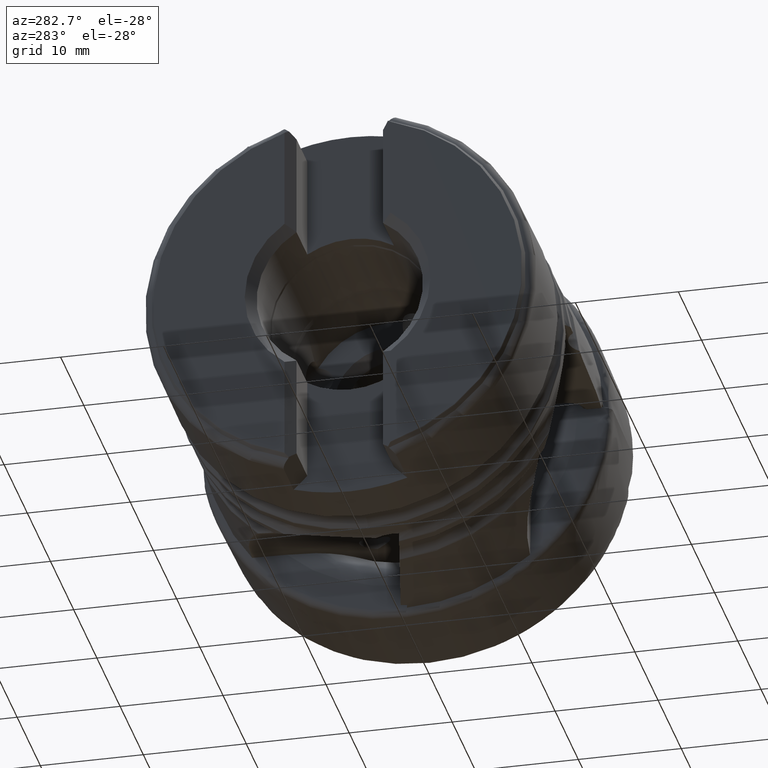
[diagram: clean part render]
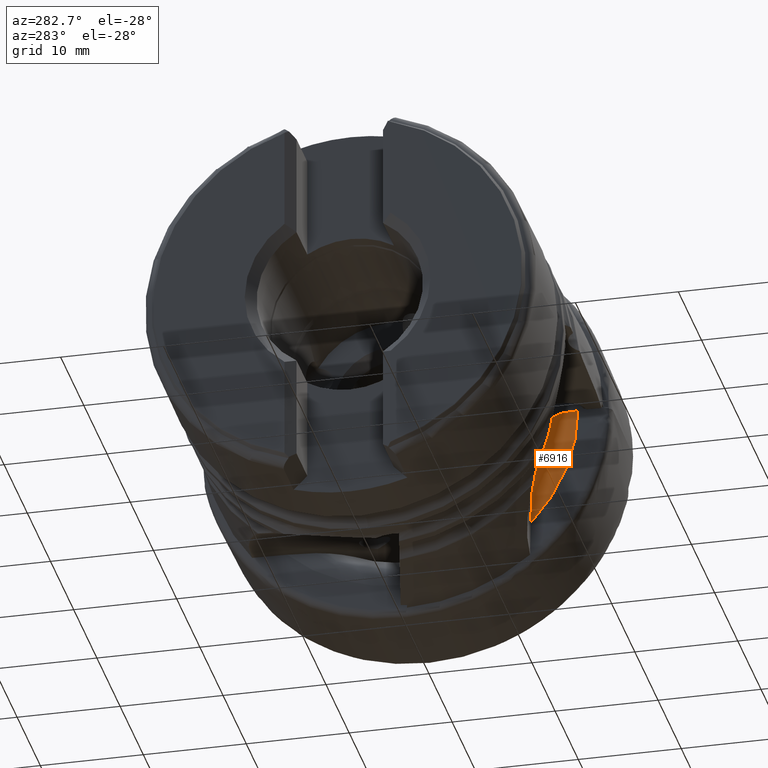
[diagram: same view with one face highlighted and labeled with its STEP entity id]
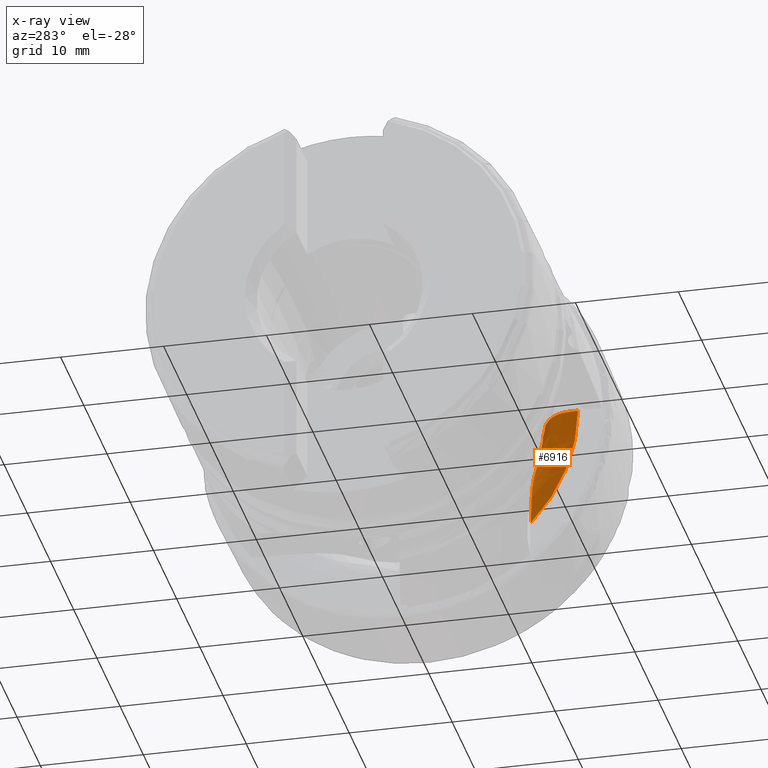
[diagram: x-ray of the same camera — body ghosted, the highlighted face saturated]
A machine part, auxiliary view. The second image highlights one B-rep face of the part: STEP entity #6916.
The next image is the same camera in x-ray: the body ghosted, the highlighted face saturated — about 5% of this face is hidden behind the body in this view.
In plain terms, the highlighted face is a freeform B-spline surface patch.
Its self-contained STEP definition (entity closure, byte-faithful):
#222 = B_SPLINE_CURVE_WITH_KNOTS ( 'NONE', 3,
 ( #1921, #1920, #1928, #1929, #1930, #1931, #1932, #1933 ),
 .UNSPECIFIED., .F., .F.,
 ( 4, 2, 2, 4 ),
 ( 0.0000000000000000000, 0.0007002400532963462600, 0.001400480106592692500, 0.002800960213185384600 ),
 .UNSPECIFIED. ) ;
#290 = B_SPLINE_CURVE_WITH_KNOTS ( 'NONE', 3,
 ( #6130, #6126, #6132, #6133 ),
 .UNSPECIFIED., .F., .F.,
 ( 4, 4 ),
 ( 0.001476447728278429800, 0.001909801418349464700 ),
 .UNSPECIFIED. ) ;
#347 = B_SPLINE_CURVE_WITH_KNOTS ( 'NONE', 3,
 ( #3625, #3624, #3614, #3626 ),
 .UNSPECIFIED., .F., .F.,
 ( 4, 4 ),
 ( 3.952508054694917700E-018, 0.001030838954930070600 ),
 .UNSPECIFIED. ) ;
#367 = B_SPLINE_CURVE_WITH_KNOTS ( 'NONE', 3,
 ( #1329, #1334, #1341, #1342 ),
 .UNSPECIFIED., .F., .F.,
 ( 4, 4 ),
 ( 0.001320593879881324600, 0.001917556996304377300 ),
 .UNSPECIFIED. ) ;
#374 = B_SPLINE_CURVE_WITH_KNOTS ( 'NONE', 3,
 ( #5356, #5351, #5352, #5357, #5358, #5359, #5360, #5361 ),
 .UNSPECIFIED., .F., .F.,
 ( 4, 2, 2, 4 ),
 ( 0.008351090307549175600, 0.01054037275500504000, 0.01163501397873297400, 0.01272965520246090500 ),
 .UNSPECIFIED. ) ;
#404 = B_SPLINE_CURVE_WITH_KNOTS ( 'NONE', 3,
 ( #1311, #1313, #1315, #1316 ),
 .UNSPECIFIED., .F., .F.,
 ( 4, 4 ),
 ( 5.511672668725034100E-017, 0.001290642213120008500 ),
 .UNSPECIFIED. ) ;
#407 = B_SPLINE_CURVE_WITH_KNOTS ( 'NONE', 3,
 ( #4167, #4168, #4170, #4172, #4174 ),
 .UNSPECIFIED., .F., .F.,
 ( 4, 1, 4 ),
 ( 0.8729780395646822300, 0.8863729908924951100, 1.000000000000000000 ),
 .UNSPECIFIED. ) ;
#408 = B_SPLINE_CURVE_WITH_KNOTS ( 'NONE', 3,
 ( #2010, #2009, #2015, #2016, #2017, #2018, #2019, #2020, #2021, #2022, #2023, #2024, #2025, #2026 ),
 .UNSPECIFIED., .F., .F.,
 ( 4, 2, 2, 2, 2, 2, 4 ),
 ( 0.003767235032708279900, 0.006039660874022324600, 0.007175873794679344200, 0.008312086715336364600, 0.009448299635993383200, 0.01058451255665040400, 0.01285693839796444100 ),
 .UNSPECIFIED. ) ;
#411 =( BOUNDED_SURFACE ( )  B_SPLINE_SURFACE ( 3, 3, ( 
 ( #1055, #1067, #1068, #1069 ),
 ( #1070, #1071, #1072, #1073 ),
 ( #1074, #1075, #1076, #1077 ),
 ( #1078, #1079, #1080, #1081 ),
 ( #1082, #1083, #1084, #1085 ) ),
 .UNSPECIFIED., .F., .F., .F. ) 
 B_SPLINE_SURFACE_WITH_KNOTS ( ( 4, 1, 4 ),
 ( 4, 4 ),
 ( 0.7881940200187449500, 0.8863729908924951100, 1.000000000000000000 ),
 ( 0.0000000000000000000, 1.000000000000000000 ),
 .UNSPECIFIED. ) 
 GEOMETRIC_REPRESENTATION_ITEM ( )  RATIONAL_B_SPLINE_SURFACE ( (
 ( 1.000000000000000000, 0.9521208568131361800, 0.9521208568131361800, 1.000000000000000000),
 ( 1.000000000000000000, 0.9521208568131361800, 0.9521208568131361800, 1.000000000000000000),
 ( 1.000000000000000000, 0.9521208568131361800, 0.9521208568131361800, 1.000000000000000000),
 ( 1.000000000000000000, 0.9521208568131361800, 0.9521208568131361800, 1.000000000000000000),
 ( 1.000000000000000000, 0.9521208568131361800, 0.9521208568131361800, 1.000000000000000000) ) ) 
 REPRESENTATION_ITEM ( '' )  SURFACE ( )  );
#428 = VERTEX_POINT ( 'NONE', #4623 ) ;
#1055 = CARTESIAN_POINT ( 'NONE',  ( -2.592812882540238100, -11.67711405151526400, 0.0000000000000000000 ) ) ;
#1067 = CARTESIAN_POINT ( 'NONE',  ( -2.592812882540238100, -11.67711405151526800, -3.042600486531332300 ) ) ;
#1068 = CARTESIAN_POINT ( 'NONE',  ( -2.592812882540238100, -10.54487618180252900, -5.866685316530082500 ) ) ;
#1069 = CARTESIAN_POINT ( 'NONE',  ( -2.592812882540238600, -8.443032179633753700, -8.066610204154168100 ) ) ;
#1070 = CARTESIAN_POINT ( 'NONE',  ( -4.369949311343619400, -11.77379816591326500, 0.0000000000000000000 ) ) ;
#1071 = CARTESIAN_POINT ( 'NONE',  ( -4.369949311343618500, -11.77379816591326600, -3.067792595832434400 ) ) ;
#1072 = CARTESIAN_POINT ( 'NONE',  ( -4.369949311343618500, -10.63218559837381600, -5.915260270219675900 ) ) ;
#1073 = CARTESIAN_POINT ( 'NONE',  ( -4.369949311343619400, -8.512938758050342600, -8.133400085655864600 ) ) ;
#1074 = CARTESIAN_POINT ( 'NONE',  ( -10.06670502256023300, -13.41846006586114900, 0.0000000000000000000 ) ) ;
#1075 = CARTESIAN_POINT ( 'NONE',  ( -10.06670502256023300, -13.41846006586115100, -3.496327341222853500 ) ) ;
#1076 = CARTESIAN_POINT ( 'NONE',  ( -10.06670502256023300, -12.11737757469334300, -6.741552946347874300 ) ) ;
#1077 = CARTESIAN_POINT ( 'NONE',  ( -10.06670502256023300, -9.702096737035370600, -9.269540951110684500 ) ) ;
#1078 = CARTESIAN_POINT ( 'NONE',  ( -10.06748697280135700, -15.57753667616101200, 0.0000000000000000000 ) ) ;
#1079 = CARTESIAN_POINT ( 'NONE',  ( -10.06748697280136000, -15.57753667616101500, -4.058898496730607900 ) ) ;
#1080 = CARTESIAN_POINT ( 'NONE',  ( -10.06748697280136000, -14.06710551450768800, -7.826292120002348100 ) ) ;
#1081 = CARTESIAN_POINT ( 'NONE',  ( -10.06748697280135700, -11.26319764078913900, -10.76104213362550700 ) ) ;
#1082 = CARTESIAN_POINT ( 'NONE',  ( -10.06790646363527000, -16.73581095002265700, 0.0000000000000000000 ) ) ;
#1083 = CARTESIAN_POINT ( 'NONE',  ( -10.06790646363527100, -16.73581095002265700, -4.360699597040222900 ) ) ;
#1084 = CARTESIAN_POINT ( 'NONE',  ( -10.06790646363527100, -15.11307104576439300, -8.408219353478063600 ) ) ;
#1085 = CARTESIAN_POINT ( 'NONE',  ( -10.06790646363527000, -12.10067742594091700, -11.56118393540307700 ) ) ;
#1231 = CARTESIAN_POINT ( 'NONE',  ( -6.453291282677279000, -12.02079705474359100, -3.471597504611646700 ) ) ;
#1238 = CARTESIAN_POINT ( 'NONE',  ( -5.255036717896246900, -11.74517582559778400, -3.079199418080853100 ) ) ;
#1257 = CARTESIAN_POINT ( 'NONE',  ( -7.606702608324597200, -12.96942658312011400, -0.3848883326738132800 ) ) ;
#1259 = CARTESIAN_POINT ( 'NONE',  ( -6.672224202152786000, -12.57718552574331200, -0.5835178496445767600 ) ) ;
#1311 = CARTESIAN_POINT ( 'NONE',  ( -6.453291282677279000, -12.02079705474359100, -3.471597504611646700 ) ) ;
#1313 = CARTESIAN_POINT ( 'NONE',  ( -6.054671720658150000, -11.90987778853589800, -3.351737015765289900 ) ) ;
#1315 = CARTESIAN_POINT ( 'NONE',  ( -5.654179436447766900, -11.81824845104880100, -3.224045918016041200 ) ) ;
#1316 = CARTESIAN_POINT ( 'NONE',  ( -5.255036717896246900, -11.74517582559778400, -3.079199418080853100 ) ) ;
#1329 = CARTESIAN_POINT ( 'NONE',  ( -6.782538228414034100, -12.57718552574332100, -1.173474236437523900 ) ) ;
#1334 = CARTESIAN_POINT ( 'NONE',  ( -6.734893669587612500, -12.57718552574331700, -0.9800485523183788400 ) ) ;
#1341 = CARTESIAN_POINT ( 'NONE',  ( -6.697423320326480600, -12.57718552574331200, -0.7836038420496185300 ) ) ;
#1342 = CARTESIAN_POINT ( 'NONE',  ( -6.672224202152786000, -12.57718552574331200, -0.5835178496445767600 ) ) ;
#1920 = CARTESIAN_POINT ( 'NONE',  ( -2.882390024671125200, -11.49999999999906200, -2.128825285422356800 ) ) ;
#1921 = CARTESIAN_POINT ( 'NONE',  ( -2.661835873491897400, -11.49999999999906200, -2.049356560665186700 ) ) ;
#1928 = CARTESIAN_POINT ( 'NONE',  ( -3.096763152077793600, -11.50496594902534900, -2.222675918358266100 ) ) ;
#1929 = CARTESIAN_POINT ( 'NONE',  ( -3.526869835264266200, -11.52605002925380800, -2.404296538592669100 ) ) ;
#1930 = CARTESIAN_POINT ( 'NONE',  ( -3.741735088070511600, -11.54196106176818900, -2.494302264654025600 ) ) ;
#1931 = CARTESIAN_POINT ( 'NONE',  ( -4.387996862052261800, -11.60451766104755600, -2.756595276783118600 ) ) ;
#1932 = CARTESIAN_POINT ( 'NONE',  ( -4.820891455434702000, -11.66569514693150100, -2.921650704780459900 ) ) ;
#1933 = CARTESIAN_POINT ( 'NONE',  ( -5.255036717896246900, -11.74517582559778400, -3.079199418080853100 ) ) ;
#2009 = CARTESIAN_POINT ( 'NONE',  ( -10.06772095129762900, -12.16958726003325500, -10.74360429667746600 ) ) ;
#2010 = CARTESIAN_POINT ( 'NONE',  ( -10.06790646363451300, -12.15313606701412800, -11.50602676390608700 ) ) ;
#2015 = CARTESIAN_POINT ( 'NONE',  ( -10.06195630611032700, -12.18715399772315600, -9.981398670387939400 ) ) ;
#2016 = CARTESIAN_POINT ( 'NONE',  ( -9.888042208742422900, -12.19489955003559700, -8.843577895180050800 ) ) ;
#2017 = CARTESIAN_POINT ( 'NONE',  ( -9.803840873225398800, -12.19432064858759400, -8.470598744414433100 ) ) ;
#2018 = CARTESIAN_POINT ( 'NONE',  ( -9.576958177720431600, -12.18598256464082000, -7.749243586214583400 ) ) ;
#2019 = CARTESIAN_POINT ( 'NONE',  ( -9.434128044571572500, -12.17824138047982900, -7.399381183569198900 ) ) ;
#2020 = CARTESIAN_POINT ( 'NONE',  ( -9.090705502407534100, -12.15705049173639600, -6.720891417738283000 ) ) ;
#2021 = CARTESIAN_POINT ( 'NONE',  ( -8.888901611102348000, -12.14355223399961400, -6.391161500897179200 ) ) ;
#2022 = CARTESIAN_POINT ( 'NONE',  ( -8.450529371770175000, -12.11501140876640300, -5.767616088086114700 ) ) ;
#2023 = CARTESIAN_POINT ( 'NONE',  ( -8.212225426734196500, -12.09989330370087000, -5.471486520223568700 ) ) ;
#2024 = CARTESIAN_POINT ( 'NONE',  ( -7.472370097059444700, -12.05771487972414300, -4.603328994408522900 ) ) ;
#2025 = CARTESIAN_POINT ( 'NONE',  ( -6.948419705727466100, -12.03469265865776100, -4.049418896452091400 ) ) ;
#2026 = CARTESIAN_POINT ( 'NONE',  ( -6.453291282677279000, -12.02079705474359100, -3.471597504611646700 ) ) ;
#2505 = ORIENTED_EDGE ( 'NONE', *, *, #3865, .F. ) ;
#2506 = ORIENTED_EDGE ( 'NONE', *, *, #3771, .F. ) ;
#2507 = ORIENTED_EDGE ( 'NONE', *, *, #3760, .F. ) ;
#2508 = ORIENTED_EDGE ( 'NONE', *, *, #8310, .F. ) ;
#2509 = ORIENTED_EDGE ( 'NONE', *, *, #4032, .T. ) ;
#2510 = ORIENTED_EDGE ( 'NONE', *, *, #8346, .T. ) ;
#2511 = ORIENTED_EDGE ( 'NONE', *, *, #8301, .F. ) ;
#2512 = ORIENTED_EDGE ( 'NONE', *, *, #8366, .F. ) ;
#2513 = ORIENTED_EDGE ( 'NONE', *, *, #3871, .F. ) ;
#3136 = FACE_OUTER_BOUND ( 'NONE', #6317, .T. ) ;
#3614 = CARTESIAN_POINT ( 'NONE',  ( -7.301078406224415400, -12.82626896633786200, -0.4498507622353720100 ) ) ;
#3624 = CARTESIAN_POINT ( 'NONE',  ( -6.988901905251070800, -12.69696779668703700, -0.5162059259164451000 ) ) ;
#3625 = CARTESIAN_POINT ( 'NONE',  ( -6.672224202152786000, -12.57718552574331200, -0.5835178496445767600 ) ) ;
#3626 = CARTESIAN_POINT ( 'NONE',  ( -7.606702608324597200, -12.96942658312011400, -0.3848883326738132800 ) ) ;
#3760 = EDGE_CURVE ( 'NONE', #7904, #7902, #347, .T. ) ;
#3771 = EDGE_CURVE ( 'NONE', #7902, #5775, #290, .T. ) ;
#3865 = EDGE_CURVE ( 'NONE', #5775, #5805, #407, .T. ) ;
#3871 = EDGE_CURVE ( 'NONE', #5805, #428, #6110, .T. ) ;
#4032 = EDGE_CURVE ( 'NONE', #4859, #4869, #374, .T. ) ;
#4130 = CARTESIAN_POINT ( 'NONE',  ( -10.06790646363527500, -2.356220197874452000E-015, 0.0000000000000000000 ) ) ;
#4131 = DIRECTION ( 'NONE',  ( 1.000000000000000000, 1.222035470961051100E-016, -0.0000000000000000000 ) ) ;
#4132 = DIRECTION ( 'NONE',  ( 3.109601586365539600E-016, -1.000000000000000000, 0.0000000000000000000 ) ) ;
#4167 = CARTESIAN_POINT ( 'NONE',  ( -7.784428656631089200, -13.05934464248627900, -9.152412474768387400E-012 ) ) ;
#4168 = CARTESIAN_POINT ( 'NONE',  ( -8.017986827679251900, -13.17291089249693800, 0.0000000000000000000 ) ) ;
#4170 = CARTESIAN_POINT ( 'NONE',  ( -10.06701803017471700, -14.28271891986064400, 0.0000000000000000000 ) ) ;
#4172 = CARTESIAN_POINT ( 'NONE',  ( -10.06748697280135700, -15.57753667616101200, 0.0000000000000000000 ) ) ;
#4174 = CARTESIAN_POINT ( 'NONE',  ( -10.06790646363527300, -16.73581095002265700, 0.0000000000000000000 ) ) ;
#4623 = CARTESIAN_POINT ( 'NONE',  ( -10.06790646363451300, -12.15313606701412800, -11.50602676390608700 ) ) ;
#4666 = AXIS2_PLACEMENT_3D ( 'NONE', #4130, #4131, #4132 ) ;
#4859 = VERTEX_POINT ( 'NONE', #5786 ) ;
#4869 = VERTEX_POINT ( 'NONE', #5804 ) ;
#5351 = CARTESIAN_POINT ( 'NONE',  ( -6.118731779233040200, -12.31258211858484100, -1.314570652889822200 ) ) ;
#5352 = CARTESIAN_POINT ( 'NONE',  ( -5.440058949607435000, -12.09140628427944200, -1.458827016053908700 ) ) ;
#5356 = CARTESIAN_POINT ( 'NONE',  ( -6.782538228414034100, -12.57718552574332100, -1.173474236437523900 ) ) ;
#5357 = CARTESIAN_POINT ( 'NONE',  ( -4.411311516915136000, -11.81586300330472000, -1.677494033173848200 ) ) ;
#5358 = CARTESIAN_POINT ( 'NONE',  ( -4.066039261310340400, -11.73369690962440600, -1.750883916665256100 ) ) ;
#5359 = CARTESIAN_POINT ( 'NONE',  ( -3.369438873018500800, -11.59424584209987500, -1.898950900058572300 ) ) ;
#5360 = CARTESIAN_POINT ( 'NONE',  ( -3.018250708556215600, -11.53638579619736500, -1.973598248795884100 ) ) ;
#5361 = CARTESIAN_POINT ( 'NONE',  ( -2.661835873491897400, -11.49999999999906200, -2.049356560665186700 ) ) ;
#5775 = VERTEX_POINT ( 'NONE', #5865 ) ;
#5786 = CARTESIAN_POINT ( 'NONE',  ( -6.782538228414034100, -12.57718552574332100, -1.173474236437523900 ) ) ;
#5804 = CARTESIAN_POINT ( 'NONE',  ( -2.661835873491897400, -11.49999999999906200, -2.049356560665186700 ) ) ;
#5805 = VERTEX_POINT ( 'NONE', #5884 ) ;
#5865 = CARTESIAN_POINT ( 'NONE',  ( -7.784428656631089200, -13.05934464248627900, -9.152412474768387400E-012 ) ) ;
#5884 = CARTESIAN_POINT ( 'NONE',  ( -10.06790646363527300, -16.73581095002265700, 0.0000000000000000000 ) ) ;
#6110 = CIRCLE ( 'NONE', #4666, 16.73581095002265300 ) ;
#6126 = CARTESIAN_POINT ( 'NONE',  ( -7.663966004712245100, -12.99971977780048200, -0.2557755295662138600 ) ) ;
#6130 = CARTESIAN_POINT ( 'NONE',  ( -7.606702608324597200, -12.96942658312011400, -0.3848883326738132800 ) ) ;
#6132 = CARTESIAN_POINT ( 'NONE',  ( -7.723386948391887300, -13.02966348053899500, -0.1275532725675842500 ) ) ;
#6133 = CARTESIAN_POINT ( 'NONE',  ( -7.784428656631089200, -13.05934464248627900, -9.152412474768387400E-012 ) ) ;
#6317 = EDGE_LOOP ( 'NONE', ( #2505, #2506, #2507, #2508, #2509, #2510, #2511, #2512, #2513 ) ) ;
#6916 = ADVANCED_FACE ( 'NONE', ( #3136 ), #411, .F. ) ;
#7881 = VERTEX_POINT ( 'NONE', #1238 ) ;
#7885 = VERTEX_POINT ( 'NONE', #1231 ) ;
#7902 = VERTEX_POINT ( 'NONE', #1257 ) ;
#7904 = VERTEX_POINT ( 'NONE', #1259 ) ;
#8301 = EDGE_CURVE ( 'NONE', #7885, #7881, #404, .T. ) ;
#8310 = EDGE_CURVE ( 'NONE', #4859, #7904, #367, .T. ) ;
#8346 = EDGE_CURVE ( 'NONE', #4869, #7881, #222, .T. ) ;
#8366 = EDGE_CURVE ( 'NONE', #428, #7885, #408, .T. ) ;